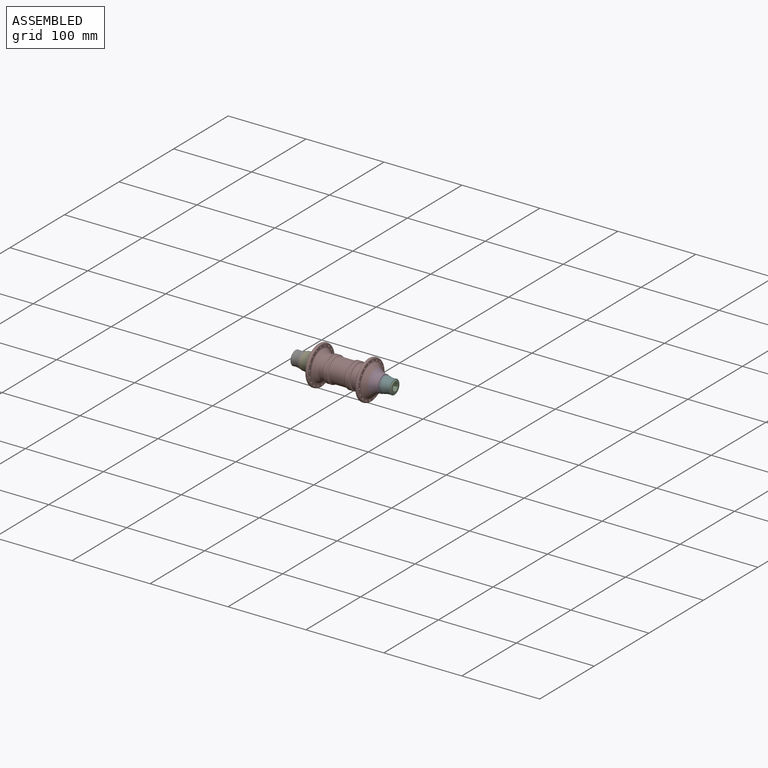
[diagram: assembled view]
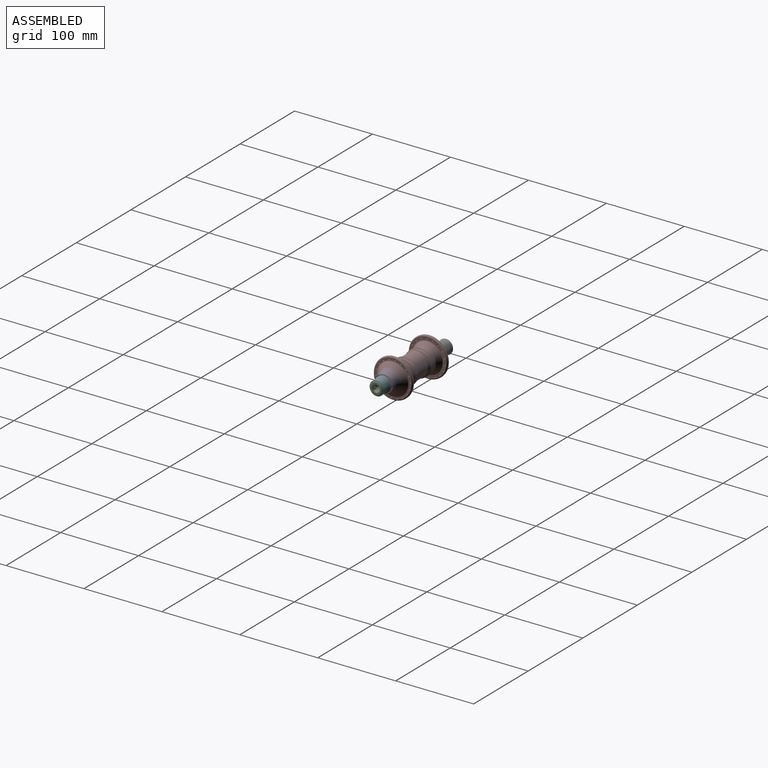
[diagram: assembled view, second angle]
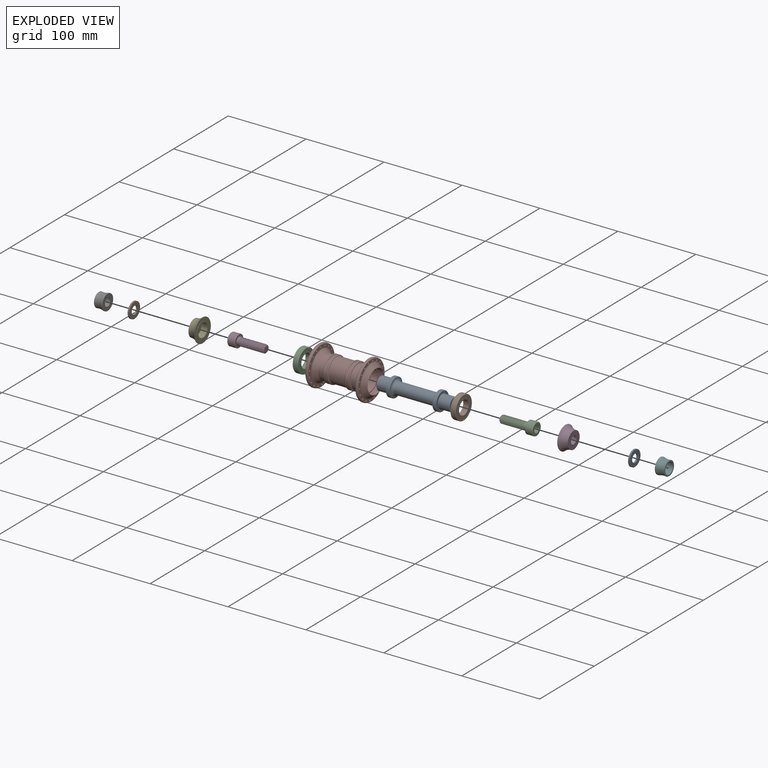
[diagram: exploded view]
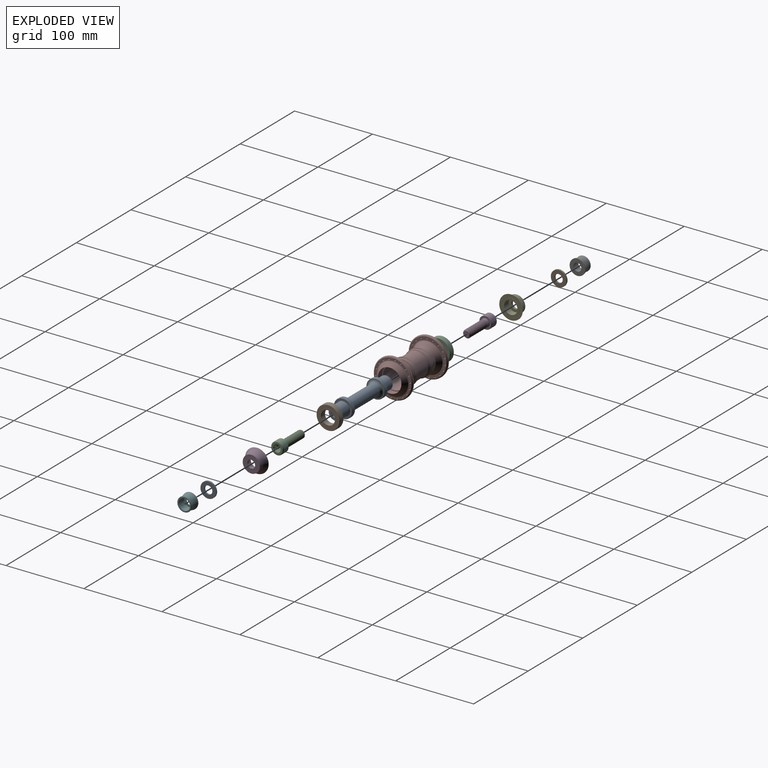
[diagram: exploded view, second angle]
FCSTD DOCUMENT  (FreeCAD 1.0R39285 (Git))
Label: Bike_wheel_Hub
License: All rights reserved
LicenseURL: https://en.wikipedia.org/wiki/All_rights_reserved
objects: Part::Feature×15, Sketcher::SketchObject×14, App::Link×12, App::FeaturePython×12, PartDesign::Pocket×7, PartDesign::Revolution×4, PartDesign::Body×4, PartDesign::Mirrored×2, PartDesign::PolarPattern×2, PartDesign::Fillet×2, Part::FeaturePython×2, PartDesign::Plane×1, PartDesign::SubtractivePipe×1, App::Part×1, PartDesign::Hole×1, App::DocumentObjectGroup×1, Assembly::JointGroup×1, Assembly::AssemblyObject×1
note: 103 computed .brp shape members not serialized (recipe doc carries the construction recipe); baked Part::Feature solids carry a one-line shape summary decoded from their .brp

FEATURE [Sketcher::SketchObject] Sketch
  ArcFitTolerance = 1e-06
  AttachmentSupport = -> [XZ_Plane]
  FullyConstrained = true
  MakeInternals = false
  MapMode = 5
  Placement = pos=(0,0,0) rot=(1,0,0;1.5708rad)
  sketch-geometry (19):
    g0: LineSegment StartX=0 StartY=0 StartZ=0 EndX=-47 EndY=0 EndZ=0
    g1: LineSegment StartX=-47 StartY=0 StartZ=0 EndX=-47 EndY=8 EndZ=0
    g2: LineSegment StartX=-46.5 StartY=8.5 StartZ=0 EndX=-32.8 EndY=8.5 EndZ=0
    g3: LineSegment StartX=-32.3 StartY=9 StartZ=0 EndX=-32.3 EndY=11.5 EndZ=0
    g4: LineSegment StartX=-31.8 StartY=12 StartZ=0 EndX=-27.8 EndY=12 EndZ=0
    g5: LineSegment StartX=-27.3 StartY=11.5 StartZ=0 EndX=-27.3 EndY=11 EndZ=0
    g6: LineSegment StartX=-23.8 StartY=7.5 StartZ=0 EndX=0 EndY=7.5 EndZ=0
    g7: LineSegment StartX=0 StartY=0 StartZ=0 EndX=0 EndY=7.5 EndZ=0
    g8: ArcOfCircle CenterX=-27.8 CenterY=11.5 CenterZ=0 NormalX=0 NormalY=0 NormalZ=1 AngleXU=0 Radius=0.5 StartAngle=-1.8e-15 EndAngle=1.5708
    g9: GeomPoint [constr] X=-27.3 Y=12 Z=0
    g10: ArcOfCircle CenterX=-23.8 CenterY=11 CenterZ=0 NormalX=0 NormalY=0 NormalZ=1 AngleXU=0 Radius=3.5 StartAngle=3.14159 EndAngle=4.71239
    g11: GeomPoint [constr] X=-27.3 Y=7.5 Z=0
    g12: ArcOfCircle CenterX=-32.8 CenterY=9 CenterZ=0 NormalX=0 NormalY=0 NormalZ=1 AngleXU=0 Radius=0.5 StartAngle=4.71239 EndAngle=6.28319
    g13: GeomPoint [constr] X=-32.3 Y=8.5 Z=0
    g14: ArcOfCircle CenterX=-31.8 CenterY=11.5 CenterZ=0 NormalX=0 NormalY=0 NormalZ=1 AngleXU=0 Radius=0.5 StartAngle=1.5708 EndAngle=3.14159
    g15: GeomPoint [constr] X=-32.3 Y=12 Z=0
    g16: ArcOfCircle [constr] CenterX=-46.5 CenterY=8 CenterZ=0 NormalX=0 NormalY=0 NormalZ=1 AngleXU=0 Radius=0.5 StartAngle=1.5708 EndAngle=3.14159
    g17: GeomPoint [constr] X=-47 Y=8.5 Z=0
    g18: LineSegment StartX=-46.5 StartY=8.5 StartZ=0 EndX=-47 EndY=8 EndZ=0
  constraints (45):
    c: Coincident(g-1,g0)
    c: PointOnObject(g0,g-1)
    c: Coincident(g0,g1)
    c: Vertical(g1)
    c: Horizontal(g2)
    c: Vertical(g3)
    c: Horizontal(g4)
    c: Vertical(g5)
    c: PointOnObject(g6,g-2)
    c: Horizontal(g6)
    c: Coincident(g7,g0)
    c: Coincident(g7,g6)
    c: DistanceY(g7,g7) = 7.5
    c: DistanceY(g1,g17) = 8.5
    c: DistanceX(g0,g0) = 47
    c: DistanceY(g-1,g15) = 12
    c: DistanceX(g15,g9) = 5
    c: DistanceX(g15,g-1) = 32.3
    c: PointOnObject(g9,g4)
    c: PointOnObject(g9,g5)
    c: Tangent(g4,g8) = 1.5708
    c: Tangent(g5,g8) = 1.5708
    c: PointOnObject(g11,g5)
    c: PointOnObject(g11,g6)
    c: Tangent(g5,g10) = -1.5708
    c: Tangent(g6,g10) = -1.5708
    c: PointOnObject(g13,g2)
    c: PointOnObject(g13,g3)
    c: Tangent(g2,g12) = -1.5708
    c: Tangent(g3,g12) = -1.5708
    c: PointOnObject(g15,g3)
    c: PointOnObject(g15,g4)
    c: Tangent(g3,g14) = 1.5708
    c: Tangent(g4,g14) = 1.5708
    c: Radius(g10) = 3.5
    c: Radius(g8) = 0.5
    c: Radius(g14) = 0.5
    c: Radius(g12) = 0.5
    c: PointOnObject(g17,g1)
    c: PointOnObject(g17,g2)
    c: Tangent(g1,g16) = 1.5708
    c: Tangent(g2,g16) = 1.5708
    c: Coincident(g18,g1)
    c: Coincident(g18,g2)
    c: Radius(g16) = 0.5
FEATURE [PartDesign::Revolution] Revolution
  Angle = 360
  Angle2 = 60
  Axis = (1,0,0)
  Base = (0,0,0)
  Placement = pos=(0,0,0) rot=(1,0,0;1.5708rad)
  Profile = -> Sketch
  ReferenceAxis = -> X_Axis
  Refine = true
  Suppressed = false
  Type = 0
FEATURE [Sketcher::SketchObject] Sketch001
  ArcFitTolerance = 1e-06
  AttachmentSupport = -> [Revolution]
  FullyConstrained = true
  MakeInternals = false
  MapMode = 5
  Placement = pos=(-47,0,0) rot=(0.707107,0,-0.707107;3.14159rad)
  sketch-geometry (1):
    g0: Circle CenterX=0 CenterY=0 CenterZ=0 NormalX=0 NormalY=0 NormalZ=1 AngleXU=0 Radius=5
  constraints (2):
    c: Diameter(g0) = 10
    c: Coincident(g0,g-1)
FEATURE [PartDesign::Pocket] Pocket
  BaseFeature = -> Revolution
  Direction = (1,0,2e-16)
  Length = 5
  Length2 = 5
  Placement = pos=(0,0,0) rot=(1,0,0;1.5708rad)
  Profile = -> Sketch001
  ReferenceAxis = -> Sketch001 [N_Axis]
  Refine = true
  Suppressed = false
  Type = 1
FEATURE [PartDesign::Mirrored] Mirrored
  BaseFeature = -> Pocket
  MirrorPlane = -> YZ_Plane
  Originals = -> [Pocket]
  Placement = pos=(0,0,0) rot=(1,0,0;1.5708rad)
  Refine = true
  Suppressed = false
  TransformMode = 1
FEATURE [PartDesign::Body] Body  label="Axle"
  AllowCompound = false
  Group = -> [Sketch,Revolution,Sketch001,Pocket,Mirrored]
  Origin = -> Origin
  Tip = -> Mirrored
FEATURE [Sketcher::SketchObject] Sketch002
  ArcFitTolerance = 1e-06
  AttachmentSupport = -> [XZ_Plane001]
  FullyConstrained = true
  MakeInternals = false
  MapMode = 5
  Placement = pos=(0,0,0) rot=(1,0,0;1.5708rad)
  sketch-geometry (31):
    g0: LineSegment StartX=0 StartY=0 StartZ=0 EndX=-39.6 EndY=0 EndZ=0
    g1: LineSegment StartX=-39.6 StartY=0 StartZ=0 EndX=-39.6 EndY=15 EndZ=0
    g2: LineSegment StartX=-39.6 StartY=15 StartZ=0 EndX=-34.668 EndY=19.4036 EndZ=0
    g3: LineSegment StartX=-34 StartY=20.8955 StartZ=0 EndX=-34 EndY=23.6 EndZ=0
    g4: LineSegment StartX=-32.6 StartY=25 StartZ=0 EndX=-31.4 EndY=25 EndZ=0
    g5: LineSegment StartX=-30 StartY=23.6 StartZ=0 EndX=-30 EndY=20.0226 EndZ=0
    g6: LineSegment StartX=-29.1711 StartY=18.4013 StartZ=0 EndX=-24.2621 EndY=14.8556 EndZ=0
    g7: LineSegment StartX=-23.6766 StartY=14.6662 StartZ=0 EndX=-18.3166 EndY=14.6662 EndZ=0
    g8: LineSegment StartX=-17.3249 StartY=15.5375 StartZ=0 EndX=-17.3131 EndY=15.6287 EndZ=0
    g9: LineSegment StartX=-16.3214 StartY=16.5 StartZ=0 EndX=-11.4387 EndY=16.5 EndZ=0
    g10: LineSegment StartX=-10.4829 StartY=15.794 StartZ=0 EndX=-10.4558 EndY=15.706 EndZ=0
    g11: LineSegment StartX=-9.5 StartY=15 StartZ=0 EndX=0 EndY=15 EndZ=0
    g12: LineSegment StartX=0 StartY=15 StartZ=0 EndX=0 EndY=0 EndZ=0
    g13: ArcOfCircle CenterX=-23.6766 CenterY=15.6662 CenterZ=0 NormalX=0 NormalY=0 NormalZ=1 AngleXU=0 Radius=1 StartAngle=4.08686 EndAngle=4.71239
    g14: GeomPoint [constr] X=-24 Y=14.6662 Z=0
    g15: ArcOfCircle CenterX=-18.3166 CenterY=15.6662 CenterZ=0 NormalX=0 NormalY=0 NormalZ=1 AngleXU=0 Radius=1 StartAngle=4.71239 EndAngle=6.1541
    g16: GeomPoint [constr] X=-17.438 Y=14.6662 Z=0
    g17: ArcOfCircle CenterX=-16.3214 CenterY=15.5 CenterZ=0 NormalX=0 NormalY=0 NormalZ=1 AngleXU=0 Radius=1 StartAngle=1.5708 EndAngle=3.01251
    g18: GeomPoint [constr] X=-17.2 Y=16.5 Z=0
    g19: ArcOfCircle CenterX=-11.4387 CenterY=15.5 CenterZ=0 NormalX=0 NormalY=0 NormalZ=1 AngleXU=0 Radius=1 StartAngle=0.298369 EndAngle=1.5708
    g20: GeomPoint [constr] X=-10.7 Y=16.5 Z=0
    g21: ArcOfCircle CenterX=-9.5 CenterY=16 CenterZ=0 NormalX=0 NormalY=0 NormalZ=1 AngleXU=0 Radius=1 StartAngle=3.43996 EndAngle=4.71239
    g22: GeomPoint [constr] X=-10.2387 Y=15 Z=0
    g23: ArcOfCircle CenterX=-28 CenterY=20.0226 CenterZ=0 NormalX=0 NormalY=0 NormalZ=1 AngleXU=0 Radius=2 StartAngle=3.14159 EndAngle=4.08686
    g24: GeomPoint [constr] X=-30 Y=19 Z=0
    g25: ArcOfCircle CenterX=-31.4 CenterY=23.6 CenterZ=0 NormalX=0 NormalY=0 NormalZ=1 AngleXU=0 Radius=1.4 StartAngle=-9e-16 EndAngle=1.5708
    g26: GeomPoint [constr] X=-30 Y=25 Z=0
    g27: ArcOfCircle CenterX=-32.6 CenterY=23.6 CenterZ=0 NormalX=0 NormalY=0 NormalZ=1 AngleXU=0 Radius=1.4 StartAngle=1.5708 EndAngle=3.14159
    g28: GeomPoint [constr] X=-34 Y=25 Z=0
    g29: ArcOfCircle CenterX=-36 CenterY=20.8955 CenterZ=0 NormalX=0 NormalY=0 NormalZ=1 AngleXU=0 Radius=2 StartAngle=5.44124 EndAngle=6.28319
    g30: GeomPoint [constr] X=-34 Y=20 Z=0
  constraints (74):
    c: Coincident(g-1,g0)
    c: PointOnObject(g0,g-1)
    c: Coincident(g0,g1)
    c: Vertical(g1)
    c: Coincident(g1,g2)
    c: Vertical(g3)
    c: Horizontal(g4)
    c: Vertical(g5)
    c: Horizontal(g7)
    c: Horizontal(g9)
    c: Horizontal(g11)
    c: Coincident(g11,g12)
    c: Coincident(g12,g0)
    c: Vertical(g12)
    c: DistanceY(g1,g1) = 15
    c: DistanceX(g0,g0) = 39.6
    c: DistanceY(g-1,g30) = 20
    c: DistanceY(g-1,g28) = 25
    c: DistanceY(g-1,g24) = 19
    c: DistanceX(g28,g-1) = 34
    c: DistanceX(g28,g26) = 4
    c: DistanceX(g14,g-1) = 24
    c: DistanceX(g20,g-1) = 10.7
    c: Distance(g18,g20) = 6.5
    c: DistanceY(g-1,g20) = 16.5
    c: Equal(g1,g12)
    c: PointOnObject(g14,g6)
    c: PointOnObject(g14,g7)
    c: Tangent(g6,g13) = -1.5708
    c: Tangent(g7,g13) = -1.5708
    c: PointOnObject(g16,g7)
    c: PointOnObject(g16,g8)
    c: Tangent(g7,g15) = -1.5708
    c: Tangent(g8,g15) = -1.5708
    c: PointOnObject(g18,g8)
    c: PointOnObject(g18,g9)
    c: Tangent(g8,g17) = 1.5708
    c: Tangent(g9,g17) = 1.5708
    c: PointOnObject(g20,g9)
    c: PointOnObject(g20,g10)
    c: Tangent(g9,g19) = 1.5708
    c: Tangent(g10,g19) = 1.5708
    c: PointOnObject(g22,g10)
    c: PointOnObject(g22,g11)
    c: Tangent(g10,g21) = -1.5708
    c: Tangent(g11,g21) = -1.5708
    c: Radius(g13) = 1
    c: Equal(g13,g15)
    c: Equal(g15,g17)
    c: Equal(g17,g19)
    c: Equal(g19,g21)
    c: Equal(g8,g10)
    c: DistanceX(g11,g11) = 9.5
    c: DistanceX(g7,g7) = 5.36
    c: PointOnObject(g24,g5)
    c: PointOnObject(g24,g6)
    c: Tangent(g5,g23) = -1.5708
    c: Tangent(g6,g23) = -1.5708
    c: PointOnObject(g26,g4)
    c: PointOnObject(g26,g5)
    c: Tangent(g4,g25) = 1.5708
    c: Tangent(g5,g25) = 1.5708
    c: PointOnObject(g28,g3)
    c: PointOnObject(g28,g4)
    c: Tangent(g3,g27) = 1.5708
    c: Tangent(g4,g27) = 1.5708
    c: PointOnObject(g30,g2)
    c: PointOnObject(g30,g3)
    c: Tangent(g2,g29) = -1.5708
    c: Tangent(g3,g29) = -1.5708
    c: Radius(g23) = 2
    c: Radius(g25) = 1.4
    c: Radius(g27) = 1.4
    c: Radius(g29) = 2
FEATURE [PartDesign::Revolution] Revolution001
  Angle = 360
  Angle2 = 60
  Axis = (1,0,0)
  Base = (0,0,0)
  Placement = pos=(0,0,0) rot=(1,0,0;1.5708rad)
  Profile = -> Sketch002
  ReferenceAxis = -> X_Axis001
  Refine = true
  Suppressed = false
  Type = 0
FEATURE [Sketcher::SketchObject] Sketch003
  ArcFitTolerance = 1e-06
  AttachmentSupport = -> [Revolution001]
  FullyConstrained = true
  MakeInternals = false
  MapMode = 5
  Placement = pos=(-39.6,0,0) rot=(0.707107,0,-0.707107;3.14159rad)
  sketch-geometry (1):
    g0: Circle CenterX=0 CenterY=0 CenterZ=0 NormalX=0 NormalY=0 NormalZ=1 AngleXU=0 Radius=15
  constraints (2):
    c: Diameter(g0) = 30
    c: Coincident(g0,g-1)
FEATURE [PartDesign::Pocket] Pocket001
  BaseFeature = -> Revolution001
  Direction = (1,0,2e-16)
  Length = 7.5
  Length2 = 5
  Placement = pos=(0,0,0) rot=(1,0,0;1.5708rad)
  Profile = -> Sketch003
  ReferenceAxis = -> Sketch003 [N_Axis]
  Refine = true
  Suppressed = false
  Type = 0
FEATURE [Sketcher::SketchObject] Sketch004
  ArcFitTolerance = 1e-06
  AttachmentSupport = -> [Pocket001]
  FullyConstrained = true
  MakeInternals = false
  MapMode = 5
  Placement = pos=(0,0,0) rot=(0.707107,0,0.707107;3.14159rad)
  sketch-geometry (1):
    g0: Circle CenterX=0 CenterY=0 CenterZ=0 NormalX=0 NormalY=0 NormalZ=1 AngleXU=0 Radius=14
  constraints (2):
    c: Diameter(g0) = 28
    c: Coincident(g0,g-1)
FEATURE [PartDesign::Pocket] Pocket002
  BaseFeature = -> Pocket001
  Direction = (-1,0,2e-16)
  Length = 5
  Length2 = 5
  Placement = pos=(0,0,0) rot=(1,0,0;1.5708rad)
  Profile = -> Sketch004
  ReferenceAxis = -> Sketch004 [N_Axis]
  Refine = true
  Suppressed = false
  Type = 1
FEATURE [PartDesign::Plane] DatumPlane
  AttachmentOffset = pos=(0,0,-13.95) rot=(0,0,1;0rad)
  AttachmentSupport = -> [Pocket002]
  Length = 60
  MapMode = 5
  Placement = pos=(-13.95,0,3.1e-15) rot=(0.707107,0,0.707107;3.14159rad)
  ResizeMode = 0
  Width = 60
FEATURE [Sketcher::SketchObject] Sketch005
  ArcFitTolerance = 1e-06
  AttachmentSupport = -> [DatumPlane]
  FullyConstrained = true
  MakeInternals = false
  MapMode = 5
  Placement = pos=(-13.95,0,3.1e-15) rot=(0.707107,0,0.707107;3.14159rad)
  sketch-geometry (5):
    g0: Ellipse CenterX=0 CenterY=0 CenterZ=0 NormalX=0 NormalY=0 NormalZ=1 MajorRadius=18.1 MinorRadius=16.4 AngleXU=-1.5708
    g1: LineSegment [constr] StartX=6.27002e-06 StartY=-18.1 StartZ=0 EndX=-6.27002e-06 EndY=18.1 EndZ=0
    g2: LineSegment [constr] StartX=16.4 StartY=5.68113e-06 StartZ=0 EndX=-16.4 EndY=-5.68113e-06 EndZ=0
    g3: GeomPoint [constr] X=2.65292e-06 Y=-7.65833 Z=0
    g4: GeomPoint [constr] X=-2.65292e-06 Y=7.65833 Z=0
  constraints (5):
    c: InternalAlignment(g1-g4 -> g0) x4
    c: Distance(g0,g2) = 16.4
    c: Angle(g2) = 3.14159
    c: Distance(g0,g1) = 18.1
    c: Coincident(g0,g-1)
FEATURE [Sketcher::SketchObject] Sketch006
  ArcFitTolerance = 1e-06
  AttachmentSupport = -> [XY_Plane001]
  ExternalGeometry = -> [Sketch005]
  FullyConstrained = true
  MakeInternals = false
  MapMode = 5
  sketch-geometry (1):
    g0: Circle CenterX=-13.95 CenterY=18.1 CenterZ=0 NormalX=0 NormalY=0 NormalZ=1 AngleXU=0 Radius=1.5
  constraints (2):
    c: Diameter(g0) = 3
    c: Coincident(g0,g-4)
FEATURE [PartDesign::SubtractivePipe] SubtractivePipe
  AuxilleryCurvelinear = true
  AuxillerySpineTangent = false
  BaseFeature = -> Pocket002
  Binormal = (0,0,0)
  Mode = 0
  Placement = pos=(0,0,0) rot=(1,0,0;1.5708rad)
  Profile = -> Sketch006
  Refine = true
  Spine = -> Sketch005
  SpineTangent = false
  Suppressed = false
  Transformation = 0
  Transition = 0
FEATURE [PartDesign::Mirrored] Mirrored001
  BaseFeature = -> SubtractivePipe
  MirrorPlane = -> Sketch006 [V_Axis]
  Originals = -> [SubtractivePipe]
  Placement = pos=(0,0,0) rot=(1,0,0;1.5708rad)
  Refine = true
  Suppressed = false
  TransformMode = 1
FEATURE [Sketcher::SketchObject] Sketch007
  ArcFitTolerance = 1e-06
  AttachmentSupport = -> [Mirrored001]
  FullyConstrained = true
  MakeInternals = false
  MapMode = 5
  Placement = pos=(-34,0,0) rot=(0.707107,0,-0.707107;3.14159rad)
  sketch-geometry (1):
    g0: Circle CenterX=0 CenterY=22.2 CenterZ=0 NormalX=0 NormalY=0 NormalZ=1 AngleXU=0 Radius=1.1
  constraints (3):
    c: Diameter(g0) = 2.2
    c: PointOnObject(g0,g-2)
    c: DistanceY(g-1,g0) = 22.2
FEATURE [PartDesign::Pocket] Pocket003
  BaseFeature = -> Mirrored001
  Direction = (1,0,2e-16)
  Length = 0
  Length2 = 5
  Placement = pos=(0,0,0) rot=(1,0,0;1.5708rad)
  Profile = -> Sketch007
  ReferenceAxis = -> Sketch007 [N_Axis]
  Refine = true
  Suppressed = false
  Type = 3
  UpToFace = -> Mirrored001 [Face14]
FEATURE [PartDesign::PolarPattern] PolarPattern
  Angle = 360
  Axis = -> Sketch007 [N_Axis]
  BaseFeature = -> Pocket003
  Mode = 0
  Occurrences = 18
  Offset = 120
  Originals = -> [Pocket003]
  Placement = pos=(0,0,0) rot=(1,0,0;1.5708rad)
  Refine = true
  Suppressed = false
  TransformMode = 0
FEATURE [Sketcher::SketchObject] Sketch008
  ArcFitTolerance = 1e-06
  AttachmentSupport = -> [PolarPattern]
  FullyConstrained = true
  MakeInternals = false
  MapMode = 5
  Placement = pos=(34,0,0) rot=(0.707107,0,0.707107;3.14159rad)
  sketch-geometry (2):
    g0: Circle CenterX=-3.85499 CenterY=21.8627 CenterZ=0 NormalX=0 NormalY=0 NormalZ=1 AngleXU=0 Radius=1.1
    g1: LineSegment [constr] StartX=-3.85499 StartY=21.8627 StartZ=0 EndX=0 EndY=0 EndZ=0
  constraints (5):
    c: Diameter(g0) = 2.2
    c: Coincident(g1,g0)
    c: Coincident(g1,g-1)
    c: Distance(g1,g1) = 22.2
    c: Angle(g-2,g1) = 0.174533
FEATURE [PartDesign::Pocket] Pocket004
  BaseFeature = -> PolarPattern
  Direction = (-1,0,2e-16)
  Length = 0
  Length2 = 5
  Placement = pos=(0,0,0) rot=(1,0,0;1.5708rad)
  Profile = -> Sketch008
  ReferenceAxis = -> Sketch008 [N_Axis]
  Refine = true
  Suppressed = false
  Type = 3
  UpToFace = -> PolarPattern [Face53]
FEATURE [PartDesign::PolarPattern] PolarPattern001
  Angle = 360
  Axis = -> X_Axis001
  BaseFeature = -> Pocket004
  Mode = 0
  Occurrences = 18
  Offset = 120
  Originals = -> [Pocket004]
  Placement = pos=(0,0,0) rot=(1,0,0;1.5708rad)
  Refine = true
  Suppressed = false
  TransformMode = 0
FEATURE [PartDesign::Fillet] Fillet
  Base = -> PolarPattern001 [Edge39,Edge41,Edge15,Edge13]
  BaseFeature = -> PolarPattern001
  Placement = pos=(0,0,0) rot=(1,0,0;1.5708rad)
  Radius = 0.3
  Refine = true
  SupportTransform = false
  Suppressed = false
  UseAllEdges = false
FEATURE [PartDesign::Body] Body001  label="Hub_cage"
  AllowCompound = false
  Group = -> [Sketch002,Revolution001,Sketch003,Pocket001,Sketch004,Pocket002,DatumPlane,Sketch005,Sketch006,SubtractivePipe,Mirrored001,Sketch007,Pocket003,PolarPattern,Sketch008,Pocket004,PolarPattern001,Fillet]
  Origin = -> Origin001
  Tip = -> Fillet
FEATURE [Sketcher::SketchObject] Sketch009
  ArcFitTolerance = 1e-06
  AttachmentSupport = -> [XZ_Plane002]
  FullyConstrained = true
  MakeInternals = false
  MapMode = 5
  Placement = pos=(0,0,0) rot=(1,0,0;1.5708rad)
  sketch-geometry (8):
    g0: LineSegment StartX=0 StartY=0 StartZ=0 EndX=0 EndY=10.9 EndZ=0
    g1: LineSegment StartX=0 StartY=10.9 StartZ=0 EndX=0.3 EndY=10.9 EndZ=0
    g2: LineSegment StartX=0.3 StartY=10.9 StartZ=0 EndX=0.3 EndY=15 EndZ=0
    g3: LineSegment StartX=0.3 StartY=15 StartZ=0 EndX=0.5 EndY=15 EndZ=0
    g4: LineSegment StartX=0 StartY=0 StartZ=0 EndX=10.9 EndY=0 EndZ=0
    g5: LineSegment StartX=10.9 StartY=0 StartZ=0 EndX=10.9 EndY=10.9 EndZ=0
    g6: ArcOfCircle CenterX=10.9 CenterY=26.1403 CenterZ=0 NormalX=0 NormalY=0 NormalZ=1 AngleXU=0 Radius=15.2403 StartAngle=3.96134 EndAngle=4.71239
    g7: LineSegment [constr] StartX=10.9 StartY=10.9 StartZ=0 EndX=20 EndY=10.9 EndZ=0
  constraints (24):
    c: Coincident(g-1,g0)
    c: PointOnObject(g0,g-2)
    c: Coincident(g0,g1)
    c: Horizontal(g1)
    c: Coincident(g1,g2)
    c: Vertical(g2)
    c: Coincident(g2,g3)
    c: Horizontal(g3)
    c: Coincident(g0,g4)
    c: PointOnObject(g4,g-1)
    c: Coincident(g4,g5)
    c: Vertical(g5)
    c: DistanceY(g0,g0) = 10.9
    c: DistanceX(g1,g1) = 0.3
    c: DistanceX(g3,g3) = 0.2
    c: DistanceX(g4,g4) = 10.9
    c: Coincident(g6,g5)
    c: Coincident(g6,g3)
    c: Coincident(g7,g5)
    c: Horizontal(g7)
    c: Tangent(g7,g6)
    c: Horizontal(g5,g1)
    c: DistanceY(g-1,g2) = 15
    c: DistanceX(g-1,g7) = 20
FEATURE [PartDesign::Revolution] Revolution002
  Angle = 360
  Angle2 = 60
  Axis = (1,0,0)
  Base = (0,0,0)
  Placement = pos=(0,0,0) rot=(1,0,0;1.5708rad)
  Profile = -> Sketch009
  ReferenceAxis = -> X_Axis002
  Refine = true
  Suppressed = false
  Type = 0
FEATURE [Sketcher::SketchObject] Sketch010
  ArcFitTolerance = 1e-06
  AttachmentSupport = -> [Revolution002]
  FullyConstrained = true
  MakeInternals = false
  MapMode = 5
  Placement = pos=(0,0,0) rot=(0.707107,0,-0.707107;3.14159rad)
  sketch-geometry (1):
    g0: Circle CenterX=0 CenterY=0 CenterZ=0 NormalX=0 NormalY=0 NormalZ=1 AngleXU=0 Radius=8.5
  constraints (2):
    c: Diameter(g0) = 17
    c: Coincident(g0,g-1)
FEATURE [PartDesign::Pocket] Pocket005
  BaseFeature = -> Revolution002
  Direction = (1,0,2e-16)
  Length = 8
  Length2 = 5
  Placement = pos=(0,0,0) rot=(1,0,0;1.5708rad)
  Profile = -> Sketch010
  ReferenceAxis = -> Sketch010 [N_Axis]
  Refine = true
  Suppressed = false
  Type = 0
FEATURE [Sketcher::SketchObject] Sketch011
  ArcFitTolerance = 1e-06
  AttachmentSupport = -> [Pocket005]
  FullyConstrained = true
  MakeInternals = false
  MapMode = 5
  Placement = pos=(10.9,0,0) rot=(0.707107,0,0.707107;3.14159rad)
  sketch-geometry (1):
    g0: Circle CenterX=0 CenterY=0 CenterZ=0 NormalX=0 NormalY=0 NormalZ=1 AngleXU=0 Radius=5
  constraints (2):
    c: Diameter(g0) = 10
    c: Coincident(g0,g-1)
FEATURE [PartDesign::Pocket] Pocket006
  BaseFeature = -> Pocket005
  Direction = (-1,0,2e-16)
  Length = 5
  Length2 = 5
  Placement = pos=(0,0,0) rot=(1,0,0;1.5708rad)
  Profile = -> Sketch011
  ReferenceAxis = -> Sketch011 [N_Axis]
  Refine = true
  Suppressed = false
  Type = 1
FEATURE [PartDesign::Body] Body002  label="Cover_bearing"
  AllowCompound = false
  Group = -> [Sketch009,Revolution002,Sketch010,Pocket005,Sketch011,Pocket006]
  Origin = -> Origin002
  Tip = -> Pocket006
FEATURE [Part::Feature] Part__Feature  label="69032RS Inner ring"
  shape: bbox 7.014 x 25.44 x 25.44 mm, 8 faces (baked)
FEATURE [Part::Feature] Part__Feature001  label="69032RS Outer ring"
  shape: bbox 7.014 x 32.49 x 32.49 mm, 12 faces (baked)
FEATURE [Part::Feature] Part__Feature002  label="69032RS Ball"
  Placement = pos=(3.5,11.75,0) rot=(0.707107,0,-0.707107;3.14159rad)
  shape: bbox 3.97 x 3.97 x 3.97 mm, 1 faces (baked)
FEATURE [Part::Feature] Part__Feature003  label="69032RS Ball001"
  Placement = pos=(3.5,9.88473,6.35253) rot=(0.707107,0,-0.707107;3.14159rad)
  shape: bbox 3.97 x 3.97 x 3.97 mm, 1 faces (baked)
FEATURE [Part::Feature] Part__Feature004  label="69032RS Ball002"
  Placement = pos=(3.5,4.88113,10.6882) rot=(0.707107,0,-0.707107;3.14159rad)
  shape: bbox 3.97 x 3.97 x 3.97 mm, 1 faces (baked)
FEATURE [Part::Feature] Part__Feature005  label="69032RS Ball003"
  Placement = pos=(3.5,-1.6722,11.6304) rot=(0.707107,0,-0.707107;3.14159rad)
  shape: bbox 3.97 x 3.97 x 3.97 mm, 1 faces (baked)
FEATURE [Part::Feature] Part__Feature006  label="69032RS Ball004"
  Placement = pos=(3.5,-7.69461,8.88006) rot=(0.707107,0,-0.707107;3.14159rad)
  shape: bbox 3.97 x 3.97 x 3.97 mm, 1 faces (baked)
FEATURE [Part::Feature] Part__Feature007  label="69032RS Ball005"
  Placement = pos=(3.5,-11.274,3.31036) rot=(0.707107,0,-0.707107;3.14159rad)
  shape: bbox 3.97 x 3.97 x 3.97 mm, 1 faces (baked)
FEATURE [Part::Feature] Part__Feature008  label="69032RS Ball006"
  Placement = pos=(3.5,-11.274,-3.31036) rot=(0.707107,0,-0.707107;3.14159rad)
  shape: bbox 3.97 x 3.97 x 3.97 mm, 1 faces (baked)
FEATURE [Part::Feature] Part__Feature009  label="69032RS Ball007"
  Placement = pos=(3.5,-7.69461,-8.88006) rot=(0.707107,0,-0.707107;3.14159rad)
  shape: bbox 3.97 x 3.97 x 3.97 mm, 1 faces (baked)
FEATURE [Part::Feature] Part__Feature010  label="69032RS Ball008"
  Placement = pos=(3.5,-1.6722,-11.6304) rot=(0.707107,0,-0.707107;3.14159rad)
  shape: bbox 3.97 x 3.97 x 3.97 mm, 1 faces (baked)
FEATURE [Part::Feature] Part__Feature011  label="69032RS Ball009"
  Placement = pos=(3.5,4.88113,-10.6882) rot=(0.707107,0,-0.707107;3.14159rad)
  shape: bbox 3.97 x 3.97 x 3.97 mm, 1 faces (baked)
FEATURE [Part::Feature] Part__Feature012  label="69032RS Ball010"
  Placement = pos=(3.5,9.88473,-6.35253) rot=(0.707107,0,-0.707107;3.14159rad)
  shape: bbox 3.97 x 3.97 x 3.97 mm, 1 faces (baked)
FEATURE [Part::Feature] Part__Feature013  label="69032RS Seal"
  Placement = pos=(0.2,0,0) rot=(0,0,1;0rad)
  shape: bbox 0.15 x 27.2 x 27.2 mm, 4 faces (baked)
FEATURE [Part::Feature] Part__Feature014  label="69032RS Seal001"
  Placement = pos=(6.65,0,0) rot=(0,0,1;0rad)
  shape: bbox 0.15 x 27.2 x 27.2 mm, 4 faces (baked)
FEATURE [App::Part] _9032RS  label="Ball_Bearing"
  Group = -> [Part__Feature,Part__Feature001,Part__Feature002,Part__Feature003,Part__Feature004,Part__Feature005,Part__Feature006,Part__Feature007,Part__Feature008,Part__Feature009,Part__Feature010,Part__Feature011,Part__Feature012,Part__Feature013,Part__Feature014]
  Origin = -> Origin003
FEATURE [Part::FeaturePython] Washer  label="M10-Washer"  # WARN: FeaturePython — macro-defined, semantics opaque (R4)
  Diameter = 9
  Invert = false
  MatchOuter = false
  OffsetAngle = 0
  Type = 8
FEATURE [Part::FeaturePython] Screw  label="M10x35-Screw"  # WARN: FeaturePython — macro-defined, semantics opaque (R4)
  Diameter = 9
  Invert = false
  LeftHanded = false
  Length = 4
  LengthCustom = 35
  MatchOuter = false
  OffsetAngle = 0
  Thread = true
  Type = 75
FEATURE [Sketcher::SketchObject] Sketch012
  ArcFitTolerance = 1e-06
  AttachmentSupport = -> [XZ_Plane004]
  FullyConstrained = true
  MakeInternals = false
  MapMode = 5
  Placement = pos=(0,0,0) rot=(1,0,0;1.5708rad)
  sketch-geometry (5):
    g0: LineSegment StartX=0 StartY=0 StartZ=0 EndX=-11.5 EndY=0 EndZ=0
    g1: LineSegment StartX=-11.5 StartY=0 StartZ=0 EndX=-11.5 EndY=9.25 EndZ=0
    g2: LineSegment StartX=0 StartY=0 StartZ=0 EndX=0 EndY=10 EndZ=0
    g3: LineSegment StartX=0 StartY=10 StartZ=0 EndX=-1.3 EndY=10 EndZ=0
    g4: ArcOfCircle CenterX=-7.81788 CenterY=28.9081 CenterZ=0 NormalX=0 NormalY=0 NormalZ=1 AngleXU=0 Radius=20 StartAngle=4.52723 EndAngle=5.04435
  constraints (15):
    c: Coincident(g-1,g0)
    c: PointOnObject(g0,g-1)
    c: Coincident(g0,g1)
    c: Vertical(g1)
    c: Coincident(g0,g2)
    c: PointOnObject(g2,g-2)
    c: Coincident(g2,g3)
    c: Horizontal(g3)
    c: Coincident(g4,g3)
    c: Coincident(g4,g1)
    c: DistanceX(g0,g0) = 11.5
    c: DistanceY(g1,g1) = 9.25
    c: DistanceY(g2,g2) = 10
    c: DistanceX(g3,g3) = 1.3
    c: Radius(g4) = 20
FEATURE [PartDesign::Revolution] Revolution003
  Angle = 360
  Angle2 = 60
  Axis = (1,0,0)
  Base = (0,0,0)
  Placement = pos=(0,0,0) rot=(1,0,0;1.5708rad)
  Profile = -> Sketch012
  ReferenceAxis = -> X_Axis004
  Refine = true
  Suppressed = false
  Type = 0
FEATURE [Sketcher::SketchObject] Sketch013
  ArcFitTolerance = 1e-06
  AttachmentSupport = -> [Revolution003]
  FullyConstrained = true
  MakeInternals = false
  MapMode = 5
  Placement = pos=(-11.5,0,0) rot=(0.707107,0,-0.707107;3.14159rad)
  sketch-geometry (1):
    g0: Circle CenterX=0 CenterY=0 CenterZ=0 NormalX=0 NormalY=0 NormalZ=1 AngleXU=0 Radius=5
  constraints (2):
    c: Diameter(g0) = 10
    c: Coincident(g0,g-1)
FEATURE [PartDesign::Hole] Hole
  BaseFeature = -> Revolution003
  CustomThreadClearance = 0
  Depth = 61.5634
  DepthType = 1
  Diameter = 10
  DrillForDepth = false
  DrillPoint = 1
  DrillPointAngle = 118
  HoleCutCountersinkAngle = 90
  HoleCutCustomValues = false
  HoleCutDepth = 10.3
  HoleCutDiameter = 14.5
  HoleCutType = 1
  ModelThread = false
  Placement = pos=(0,0,0) rot=(1,0,0;1.5708rad)
  Profile = -> Sketch013
  Refine = true
  Suppressed = false
  Tapered = false
  TaperedAngle = 90
  ThreadClass = 0
  ThreadDepth = 61.5634
  ThreadDepthType = 0
  ThreadDirection = 0
  ThreadFit = 0
  ThreadSize = 0
  ThreadType = 0
  Threaded = false
  UseCustomThreadClearance = false
FEATURE [PartDesign::Fillet] Fillet001
  Base = -> Hole [Edge1]
  BaseFeature = -> Hole
  Placement = pos=(0,0,0) rot=(1,0,0;1.5708rad)
  Radius = 0.5
  Refine = true
  SupportTransform = false
  Suppressed = false
  UseAllEdges = false
FEATURE [PartDesign::Body] Body003  label="Cover_bolt"
  AllowCompound = false
  Group = -> [Sketch012,Revolution003,Sketch013,Hole,Fillet001]
  Origin = -> Origin004
  Tip = -> Fillet001
FEATURE [App::DocumentObjectGroup] Group  label="Parts"
  Group = -> [Body001,Body002,Body003,_9032RS,Washer,Screw,Body]
FEATURE [App::Link] Axle  label="Axle001"
  LinkPlacement = pos=(6.20353e-06,0.000611048,-0.00128827) rot=(0,0,1;0rad)
  LinkedObject = -> Body
  Placement = pos=(6.20353e-06,0.000611048,-0.00128827) rot=(0,0,1;0rad)
FEATURE [App::FeaturePython] GroundedJoint  # Assembly grounded joint (typed FeaturePython)
  ObjectToGround = -> Axle
  Placement = pos=(6.20353e-06,0.000611048,-0.00128827) rot=(0,0,1;0rad)
FEATURE [App::Link] Hub_cage  label="Hub_cage001"
  LinkPlacement = pos=(6.20353e-06,0.000611048,-0.00128827) rot=(1,0,0;0.235704rad)
  LinkedObject = -> Body001
  Placement = pos=(6.20353e-06,0.000611048,-0.00128827) rot=(1,0,0;0.235704rad)
FEATURE [App::Link] Ball_Bearing  label="Ball_Bearing001"
  LinkPlacement = pos=(32.1,0.000611048,-0.00128827) rot=(1,0,0;3.3773rad)
  LinkedObject = -> _9032RS
  Placement = pos=(32.1,0.000611048,-0.00128827) rot=(1,0,0;3.3773rad)
FEATURE [App::Link] Ball_Bearing001  label="Ball_Bearing002"
  LinkPlacement = pos=(-39.1,0.000611048,-0.00128827) rot=(1,0,0;3.3773rad)
  LinkedObject = -> _9032RS
  Placement = pos=(-39.1,0.000611048,-0.00128827) rot=(1,0,0;3.3773rad)
FEATURE [App::Link] Cover_bearing  label="Cover_bearing001"
  LinkPlacement = pos=(39.3,0.000611048,-0.00128827) rot=(1,0,0;0.235704rad)
  LinkedObject = -> Body002
  Placement = pos=(39.3,0.000611048,-0.00128827) rot=(1,0,0;0.235704rad)
FEATURE [App::Link] Cover_bearing001  label="Cover_bearing002"
  LinkPlacement = pos=(-39.3,0.000611048,-0.00128827) rot=(0,-0.117579,0.993064;3.14159rad)
  LinkedObject = -> Body002
  Placement = pos=(-39.3,0.000611048,-0.00128827) rot=(0,-0.117579,0.993064;3.14159rad)
FEATURE [App::Link] M10_Washer  label="M10-Washer001"
  LinkPlacement = pos=(52.2,0.000611048,-0.00128827) rot=(0.116775,-0.986269,-0.116775;1.58462rad)
  LinkedObject = -> Washer
  Placement = pos=(52.2,0.000611048,-0.00128827) rot=(0.116775,-0.986269,-0.116775;1.58462rad)
FEATURE [App::Link] M10_Washer001  label="M10-Washer002"
  LinkPlacement = pos=(-52.2,0.000611048,-0.00128827) rot=(0.704642,-0.08343,0.704642;3.30807rad)
  LinkedObject = -> Washer
  Placement = pos=(-52.2,0.000611048,-0.00128827) rot=(0.704642,-0.08343,0.704642;3.30807rad)
FEATURE [App::Link] M10x35_Screw  label="M10x35-Screw001"
  LinkPlacement = pos=(54.7,0.000611048,-0.00128827) rot=(0.704642,-0.08343,0.704642;3.30807rad)
  LinkedObject = -> Screw
  Placement = pos=(54.7,0.000611048,-0.00128827) rot=(0.704642,-0.08343,0.704642;3.30807rad)
FEATURE [App::Link] M10x35_Screw001  label="M10x35-Screw002"
  LinkPlacement = pos=(-54.7,0.000611048,-0.00128827) rot=(-0.116775,0.986269,0.116775;4.69856rad)
  LinkedObject = -> Screw
  Placement = pos=(-54.7,0.000611048,-0.00128827) rot=(-0.116775,0.986269,0.116775;4.69856rad)
FEATURE [App::Link] Cover_bolt  label="Cover_bolt001"
  LinkPlacement = pos=(52.2,0.000611048,-0.00128827) rot=(0,0.785343,-0.619061;3.14159rad)
  LinkedObject = -> Body003
  Placement = pos=(52.2,0.000611048,-0.00128827) rot=(0,0.785343,-0.619061;3.14159rad)
FEATURE [App::Link] Cover_bolt001  label="Cover_bolt002"
  LinkPlacement = pos=(-52.2,0.000611048,-0.00128827) rot=(-1,0,0;1.33509rad)
  LinkedObject = -> Body003
  Placement = pos=(-52.2,0.000611048,-0.00128827) rot=(-1,0,0;1.33509rad)
FEATURE [App::FeaturePython] Joint  label="Revolute"  # Assembly joint (typed FeaturePython)
  Activated = true
  AngleMax = 0
  AngleMin = 0
  Detach1 = false
  Detach2 = false
  Distance = 0
  Distance2 = 0
  EnableAngleMax = false
  EnableAngleMin = false
  EnableLengthMax = false
  EnableLengthMin = false
  JointType = 1 (Revolute)
  LengthMax = 0
  LengthMin = 0
  Placement1 = pos=(-8e-16,0,0) rot=(0.707107,0,0.707107;3.14159rad)
  Placement2 = pos=(-2.6e-15,0,0) rot=(0.707107,0,0.707107;3.14159rad)
  Reference1 = -> Assembly [Hub_cage.Face14,Hub_cage.Face14]
  Reference2 = -> Assembly [Axle.Face11,Axle.Face11]
FEATURE [App::FeaturePython] Joint001  label="Fixed"  # Assembly joint (typed FeaturePython)
  Activated = true
  AngleMax = 0
  AngleMin = 0
  Detach1 = false
  Detach2 = false
  Distance = 0
  Distance2 = 0
  EnableAngleMax = false
  EnableAngleMin = false
  EnableLengthMax = false
  EnableLengthMin = false
  JointType = 0 (Fixed)
  LengthMax = 0
  LengthMin = 0
  Placement1 = pos=(-32.1,0,7.1e-15) rot=(0.707107,0,0.707107;3.14159rad)
  Placement2 = pos=(7,0,0) rot=(0,1,0;1.5708rad)
  Reference1 = -> Assembly [Hub_cage.Edge133,Hub_cage.Edge133]
  Reference2 = -> Assembly [Ball_Bearing001.Part__Feature001.Edge15,Ball_Bearing001.Part__Feature001.Edge15]
FEATURE [App::FeaturePython] Joint002  label="Fixed001"  # Assembly joint (typed FeaturePython)
  Activated = true
  AngleMax = 0
  AngleMin = 0
  Detach1 = false
  Detach2 = false
  Distance = 0
  Distance2 = 0
  EnableAngleMax = false
  EnableAngleMin = false
  EnableLengthMax = false
  EnableLengthMin = false
  JointType = 0 (Fixed)
  LengthMax = 0
  LengthMin = 0
  Placement1 = pos=(0,0,0) rot=(0,1,0;1.5708rad)
  Placement2 = pos=(32.1,0,7.1e-15) rot=(0.707107,0,0.707107;3.14159rad)
  Reference1 = -> Assembly [Ball_Bearing.Part__Feature001.Edge2,Ball_Bearing.Part__Feature001.Edge2]
  Reference2 = -> Assembly [Hub_cage.Edge137,Hub_cage.Edge137]
FEATURE [App::FeaturePython] Joint003  label="Fixed002"  # Assembly joint (typed FeaturePython)
  Activated = true
  AngleMax = 0
  AngleMin = 0
  Detach1 = false
  Detach2 = false
  Distance = 0
  Distance2 = 0
  EnableAngleMax = false
  EnableAngleMin = false
  EnableLengthMax = false
  EnableLengthMin = false
  JointType = 0 (Fixed)
  LengthMax = 0
  LengthMin = 0
  Placement1 = pos=(39.6,0,0) rot=(0.707107,0,0.707107;3.14159rad)
  Placement2 = pos=(0.3,0,0) rot=(0.710187,0,0.710187;3.14159rad)
  Reference1 = -> Assembly [Hub_cage.Edge161,Hub_cage.Edge161]
  Reference2 = -> Assembly [Cover_bearing.Edge7,Cover_bearing.Edge7]
FEATURE [App::FeaturePython] Joint004  label="Fixed003"  # Assembly joint (typed FeaturePython)
  Activated = true
  AngleMax = 0
  AngleMin = 0
  Detach1 = false
  Detach2 = false
  Distance = 0
  Distance2 = 0
  EnableAngleMax = false
  EnableAngleMin = false
  EnableLengthMax = false
  EnableLengthMin = false
  JointType = 0 (Fixed)
  LengthMax = 0
  LengthMin = 0
  Placement1 = pos=(0.3,0,0) rot=(-0.707107,0,-0.707107;3.14159rad)
  Placement2 = pos=(-39.6,0,0) rot=(0.707107,0,0.707107;3.14159rad)
  Reference1 = -> Assembly [Cover_bearing001.Edge7,Cover_bearing001.Edge7]
  Reference2 = -> Assembly [Hub_cage.Edge125,Hub_cage.Edge125]
FEATURE [App::FeaturePython] Joint005  label="Fixed004"  # Assembly joint (typed FeaturePython)
  Activated = true
  AngleMax = 0
  AngleMin = 0
  Detach1 = false
  Detach2 = false
  Distance = 0
  Distance2 = 0
  EnableAngleMax = false
  EnableAngleMin = false
  EnableLengthMax = false
  EnableLengthMin = false
  JointType = 0 (Fixed)
  LengthMax = 0
  LengthMin = 0
  Placement1 = pos=(1e-16,0,2) rot=(0,0,1;0rad)
  Placement2 = pos=(10.9,0,0) rot=(-0.707107,0,-0.707107;3.14159rad)
  Reference1 = -> Assembly [M10_Washer001.Edge1,M10_Washer001.Edge1]
  Reference2 = -> Assembly [Cover_bearing001.Edge11,Cover_bearing001.Edge11]
FEATURE [App::FeaturePython] Joint006  label="Fixed005"  # Assembly joint (typed FeaturePython)
  Activated = true
  AngleMax = 0
  AngleMin = 0
  Detach1 = false
  Detach2 = false
  Distance = 0
  Distance2 = 0
  EnableAngleMax = false
  EnableAngleMin = false
  EnableLengthMax = false
  EnableLengthMin = false
  JointType = 0 (Fixed)
  LengthMax = 0
  LengthMin = 0
  Placement1 = pos=(-2e-16,0,2) rot=(0,0,1;0rad)
  Placement2 = pos=(10.9,0,0) rot=(0.710187,0,0.710187;3.14159rad)
  Reference1 = -> Assembly [M10_Washer.Edge1,M10_Washer.Edge1]
  Reference2 = -> Assembly [Cover_bearing.Edge11,Cover_bearing.Edge11]
FEATURE [App::FeaturePython] Joint007  label="Fixed006"  # Assembly joint (typed FeaturePython)
  Activated = true
  AngleMax = 0
  AngleMin = 0
  Detach1 = false
  Detach2 = false
  Distance = 0
  Distance2 = 0
  EnableAngleMax = false
  EnableAngleMin = false
  EnableLengthMax = false
  EnableLengthMin = false
  JointType = 0 (Fixed)
  LengthMax = 0
  LengthMin = 0
  Placement1 = pos=(0,0,2.5e-15) rot=(0.57735,-0.57735,0.57735;4.18879rad)
  Reference1 = -> Assembly [Cover_bolt.Edge13,Cover_bolt.Edge13]
  Reference2 = -> Assembly [M10_Washer.Edge5,M10_Washer.Edge5]
FEATURE [App::FeaturePython] Joint008  label="Fixed007"  # Assembly joint (typed FeaturePython)
  Activated = true
  AngleMax = 0
  AngleMin = 0
  Detach1 = false
  Detach2 = false
  Distance = 0
  Distance2 = 0
  EnableAngleMax = false
  EnableAngleMin = false
  EnableLengthMax = false
  EnableLengthMin = false
  JointType = 0 (Fixed)
  LengthMax = 0
  LengthMin = 0
  Placement2 = pos=(0,0,2.6e-15) rot=(0.57735,-0.57735,0.57735;4.18879rad)
  Reference1 = -> Assembly [M10_Washer001.Edge5,M10_Washer001.Edge5]
  Reference2 = -> Assembly [Cover_bolt001.Edge13,Cover_bolt001.Edge13]
FEATURE [App::FeaturePython] Joint009  label="Fixed008"  # Assembly joint (typed FeaturePython)
  Activated = true
  AngleMax = 0
  AngleMin = 0
  Detach1 = false
  Detach2 = false
  Distance = 0
  Distance2 = 0
  EnableAngleMax = false
  EnableAngleMin = false
  EnableLengthMax = false
  EnableLengthMin = false
  JointType = 0 (Fixed)
  LengthMax = 0
  LengthMin = 0
  Placement1 = pos=(-2e-16,0,9) rot=(0,0,1;0rad)
  Placement2 = pos=(-11.5,0,0) rot=(0.57735,-0.57735,-0.57735;2.0944rad)
  Reference1 = -> Assembly [M10x35_Screw001.Edge3,M10x35_Screw001.Edge3]
  Reference2 = -> Assembly [Cover_bolt001.Edge2,Cover_bolt001.Edge2]
FEATURE [App::FeaturePython] Joint010  label="Fixed009"  # Assembly joint (typed FeaturePython)
  Activated = true
  AngleMax = 0
  AngleMin = 0
  Detach1 = false
  Detach2 = false
  Distance = 0
  Distance2 = 0
  EnableAngleMax = false
  EnableAngleMin = false
  EnableLengthMax = false
  EnableLengthMin = false
  JointType = 0 (Fixed)
  LengthMax = 0
  LengthMin = 0
  Placement1 = pos=(3e-15,-1e-16,9) rot=(0,0,1;0rad)
  Placement2 = pos=(-11.5,0,0) rot=(-0.57735,0.57735,0.57735;4.18879rad)
  Reference1 = -> Assembly [M10x35_Screw.Edge3,M10x35_Screw.Edge3]
  Reference2 = -> Assembly [Cover_bolt.Edge2,Cover_bolt.Edge2]
FEATURE [Assembly::JointGroup] Joints
  Group = -> [GroundedJoint,Joint,Joint001,Joint002,Joint003,Joint004,Joint005,Joint006,Joint007,Joint008,Joint009,Joint010]
FEATURE [Assembly::AssemblyObject] Assembly  label="Compelet_Hub"
  Group = -> [Joints,Axle,GroundedJoint,Hub_cage,Ball_Bearing,Ball_Bearing001,Cover_bearing,Cover_bearing001,M10_Washer,M10_Washer001,M10x35_Screw,M10x35_Screw001,Cover_bolt,Cover_bolt001,Joint,Joint001,Joint002,Joint003,Joint004,Joint005,Joint006,Joint007,Joint008,Joint009,Joint010]
  Origin = -> Origin005
  Type = Assembly
